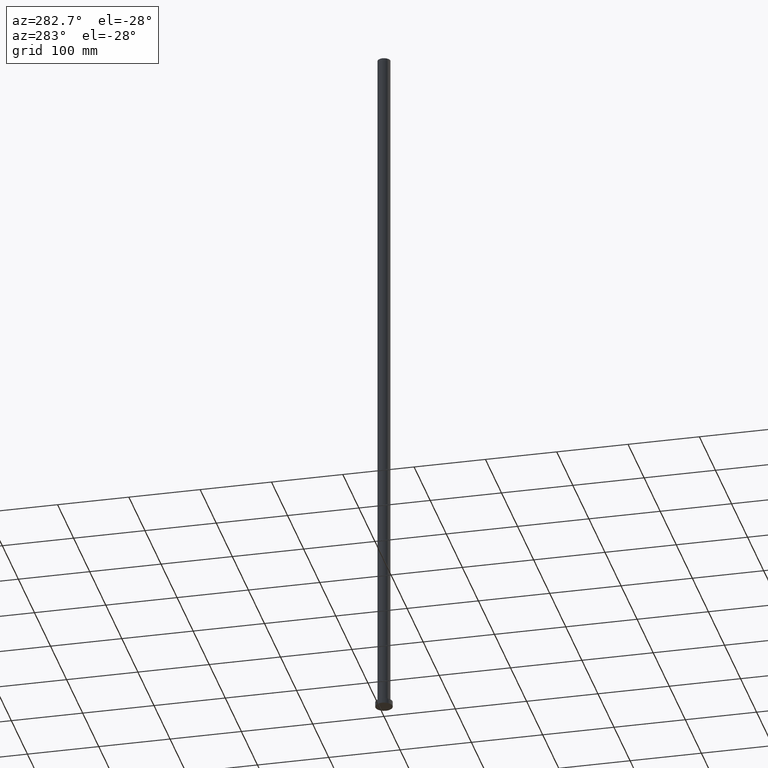
[diagram: clean part render]
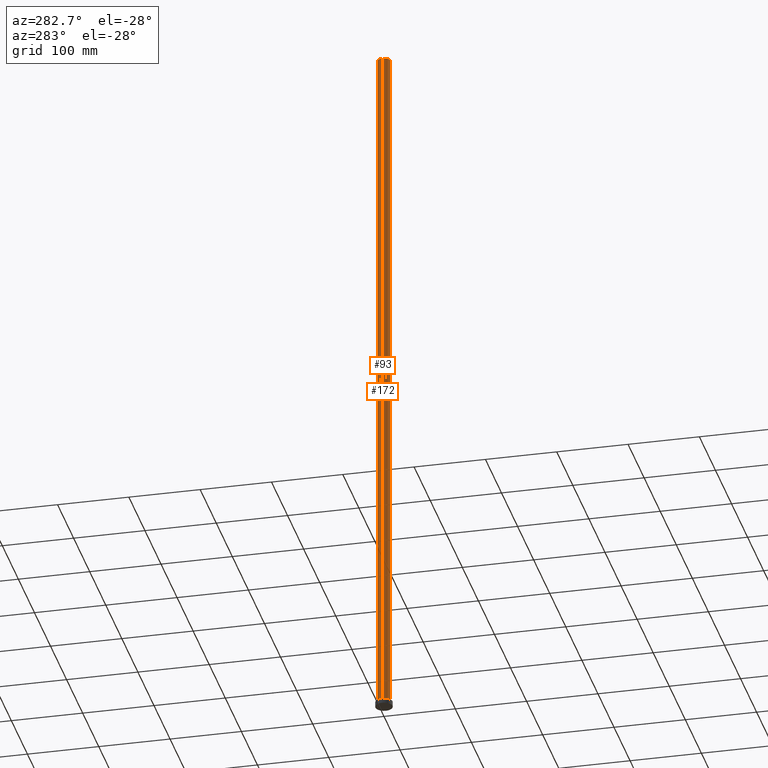
[diagram: same view with one multi-face feature highlighted, each face labeled with its STEP entity id]
A machine part, auxiliary view. The highlighted faces form ONE feature: a constant-radius fillet chain: 2 tangent blend faces with common blend radius 9 mm. The faces share edges in the B-rep.
Their STEP definitions:
[1] entity #93 (Cylinder):
#22 = ORIENTED_EDGE ( 'NONE', *, *, #58, .F. ) ;
#23 = ORIENTED_EDGE ( 'NONE', *, *, #245, .T. ) ;
#27 = CARTESIAN_POINT ( 'NONE',  ( 9.000000000000000000, 1.102182119232617714E-15, 1000.000000000000000 ) ) ;
#36 = CARTESIAN_POINT ( 'NONE',  ( -9.000000000000000000, 0.000000000000000000, 1000.000000000000000 ) ) ;
#41 = EDGE_CURVE ( 'NONE', #187, #225, #54, .T. ) ;
#49 = CARTESIAN_POINT ( 'NONE',  ( 0.000000000000000000, 0.000000000000000000, 1000.000000000000000 ) ) ;
#50 = AXIS2_PLACEMENT_3D ( 'NONE', #230, #179, #60 ) ;
#54 = LINE ( 'NONE', #173, #201 ) ;
#58 = EDGE_CURVE ( 'NONE', #223, #133, #177, .T. ) ;
#60 = DIRECTION ( 'NONE',  ( 1.000000000000000000, 0.000000000000000000, 0.000000000000000000 ) ) ;
#93 = ADVANCED_FACE ( 'NONE', ( #117 ), #157, .T. ) ;
#104 = CARTESIAN_POINT ( 'NONE',  ( 0.000000000000000000, 0.000000000000000000, 7.000000000000000000 ) ) ;
#117 = FACE_OUTER_BOUND ( 'NONE', #226, .T. ) ;
#130 = ORIENTED_EDGE ( 'NONE', *, *, #159, .F. ) ;
#133 = VERTEX_POINT ( 'NONE', #160 ) ;
#140 = AXIS2_PLACEMENT_3D ( 'NONE', #49, #251, #176 ) ;
#147 = CARTESIAN_POINT ( 'NONE',  ( -9.000000000000000000, 0.000000000000000000, 7.000000000000000000 ) ) ;
#148 = VECTOR ( 'NONE', #228, 1000.000000000000000 ) ;
#156 = DIRECTION ( 'NONE',  ( -0.000000000000000000, -0.000000000000000000, -1.000000000000000000 ) ) ;
#157 = CYLINDRICAL_SURFACE ( 'NONE', #140, 9.000000000000000000 ) ;
#159 = EDGE_CURVE ( 'NONE', #187, #223, #235, .T. ) ;
#160 = CARTESIAN_POINT ( 'NONE',  ( 9.000000000000000000, 1.102182119232617714E-15, 7.000000000000000000 ) ) ;
#173 = CARTESIAN_POINT ( 'NONE',  ( -9.000000000000000000, 0.000000000000000000, 1000.000000000000000 ) ) ;
#176 = DIRECTION ( 'NONE',  ( -1.000000000000000000, 0.000000000000000000, 0.000000000000000000 ) ) ;
#177 = LINE ( 'NONE', #27, #148 ) ;
#179 = DIRECTION ( 'NONE',  ( 0.000000000000000000, 0.000000000000000000, 1.000000000000000000 ) ) ;
#180 = ORIENTED_EDGE ( 'NONE', *, *, #41, .T. ) ;
#187 = VERTEX_POINT ( 'NONE', #36 ) ;
#201 = VECTOR ( 'NONE', #156, 1000.000000000000000 ) ;
#209 = CIRCLE ( 'NONE', #227, 9.000000000000000000 ) ;
#213 = DIRECTION ( 'NONE',  ( 1.000000000000000000, 0.000000000000000000, 0.000000000000000000 ) ) ;
#214 = CARTESIAN_POINT ( 'NONE',  ( 9.000000000000000000, 1.102182119232617714E-15, 1000.000000000000000 ) ) ;
#223 = VERTEX_POINT ( 'NONE', #214 ) ;
#225 = VERTEX_POINT ( 'NONE', #147 ) ;
#226 = EDGE_LOOP ( 'NONE', ( #22, #130, #180, #23 ) ) ;
#227 = AXIS2_PLACEMENT_3D ( 'NONE', #104, #253, #213 ) ;
#228 = DIRECTION ( 'NONE',  ( -0.000000000000000000, -0.000000000000000000, -1.000000000000000000 ) ) ;
#230 = CARTESIAN_POINT ( 'NONE',  ( 0.000000000000000000, 0.000000000000000000, 1000.000000000000000 ) ) ;
#235 = CIRCLE ( 'NONE', #50, 9.000000000000000000 ) ;
#245 = EDGE_CURVE ( 'NONE', #225, #133, #209, .T. ) ;
#251 = DIRECTION ( 'NONE',  ( -0.000000000000000000, -0.000000000000000000, -1.000000000000000000 ) ) ;
#253 = DIRECTION ( 'NONE',  ( 0.000000000000000000, 0.000000000000000000, 1.000000000000000000 ) ) ;
[2] entity #172 (Cylinder):
#11 = CARTESIAN_POINT ( 'NONE',  ( 0.000000000000000000, 0.000000000000000000, 1000.000000000000000 ) ) ;
#14 = DIRECTION ( 'NONE',  ( 1.000000000000000000, 0.000000000000000000, 0.000000000000000000 ) ) ;
#25 = AXIS2_PLACEMENT_3D ( 'NONE', #11, #52, #142 ) ;
#27 = CARTESIAN_POINT ( 'NONE',  ( 9.000000000000000000, 1.102182119232617714E-15, 1000.000000000000000 ) ) ;
#34 = AXIS2_PLACEMENT_3D ( 'NONE', #81, #234, #55 ) ;
#36 = CARTESIAN_POINT ( 'NONE',  ( -9.000000000000000000, 0.000000000000000000, 1000.000000000000000 ) ) ;
#41 = EDGE_CURVE ( 'NONE', #187, #225, #54, .T. ) ;
#52 = DIRECTION ( 'NONE',  ( 0.000000000000000000, 0.000000000000000000, 1.000000000000000000 ) ) ;
#54 = LINE ( 'NONE', #173, #201 ) ;
#55 = DIRECTION ( 'NONE',  ( -1.000000000000000000, 0.000000000000000000, 0.000000000000000000 ) ) ;
#58 = EDGE_CURVE ( 'NONE', #223, #133, #177, .T. ) ;
#70 = ORIENTED_EDGE ( 'NONE', *, *, #75, .F. ) ;
#75 = EDGE_CURVE ( 'NONE', #223, #187, #94, .T. ) ;
#81 = CARTESIAN_POINT ( 'NONE',  ( 0.000000000000000000, 0.000000000000000000, 1000.000000000000000 ) ) ;
#83 = FACE_OUTER_BOUND ( 'NONE', #109, .T. ) ;
#94 = CIRCLE ( 'NONE', #25, 9.000000000000000000 ) ;
#106 = ORIENTED_EDGE ( 'NONE', *, *, #41, .F. ) ;
#109 = EDGE_LOOP ( 'NONE', ( #70, #183, #150, #106 ) ) ;
#121 = DIRECTION ( 'NONE',  ( 0.000000000000000000, 0.000000000000000000, 1.000000000000000000 ) ) ;
#133 = VERTEX_POINT ( 'NONE', #160 ) ;
#142 = DIRECTION ( 'NONE',  ( 1.000000000000000000, 0.000000000000000000, 0.000000000000000000 ) ) ;
#147 = CARTESIAN_POINT ( 'NONE',  ( -9.000000000000000000, 0.000000000000000000, 7.000000000000000000 ) ) ;
#148 = VECTOR ( 'NONE', #228, 1000.000000000000000 ) ;
#150 = ORIENTED_EDGE ( 'NONE', *, *, #240, .T. ) ;
#156 = DIRECTION ( 'NONE',  ( -0.000000000000000000, -0.000000000000000000, -1.000000000000000000 ) ) ;
#160 = CARTESIAN_POINT ( 'NONE',  ( 9.000000000000000000, 1.102182119232617714E-15, 7.000000000000000000 ) ) ;
#172 = ADVANCED_FACE ( 'NONE', ( #83 ), #216, .T. ) ;
#173 = CARTESIAN_POINT ( 'NONE',  ( -9.000000000000000000, 0.000000000000000000, 1000.000000000000000 ) ) ;
#177 = LINE ( 'NONE', #27, #148 ) ;
#183 = ORIENTED_EDGE ( 'NONE', *, *, #58, .T. ) ;
#187 = VERTEX_POINT ( 'NONE', #36 ) ;
#198 = CARTESIAN_POINT ( 'NONE',  ( 0.000000000000000000, 0.000000000000000000, 7.000000000000000000 ) ) ;
#201 = VECTOR ( 'NONE', #156, 1000.000000000000000 ) ;
#214 = CARTESIAN_POINT ( 'NONE',  ( 9.000000000000000000, 1.102182119232617714E-15, 1000.000000000000000 ) ) ;
#215 = AXIS2_PLACEMENT_3D ( 'NONE', #198, #121, #14 ) ;
#216 = CYLINDRICAL_SURFACE ( 'NONE', #34, 9.000000000000000000 ) ;
#223 = VERTEX_POINT ( 'NONE', #214 ) ;
#225 = VERTEX_POINT ( 'NONE', #147 ) ;
#228 = DIRECTION ( 'NONE',  ( -0.000000000000000000, -0.000000000000000000, -1.000000000000000000 ) ) ;
#234 = DIRECTION ( 'NONE',  ( -0.000000000000000000, -0.000000000000000000, -1.000000000000000000 ) ) ;
#240 = EDGE_CURVE ( 'NONE', #133, #225, #247, .T. ) ;
#247 = CIRCLE ( 'NONE', #215, 9.000000000000000000 ) ;